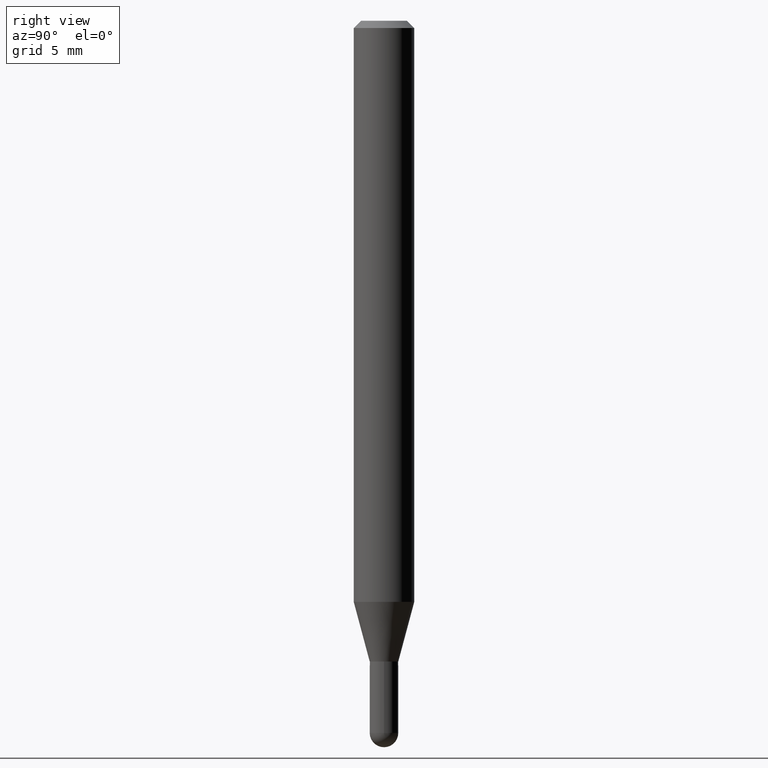
[diagram: clean part render]
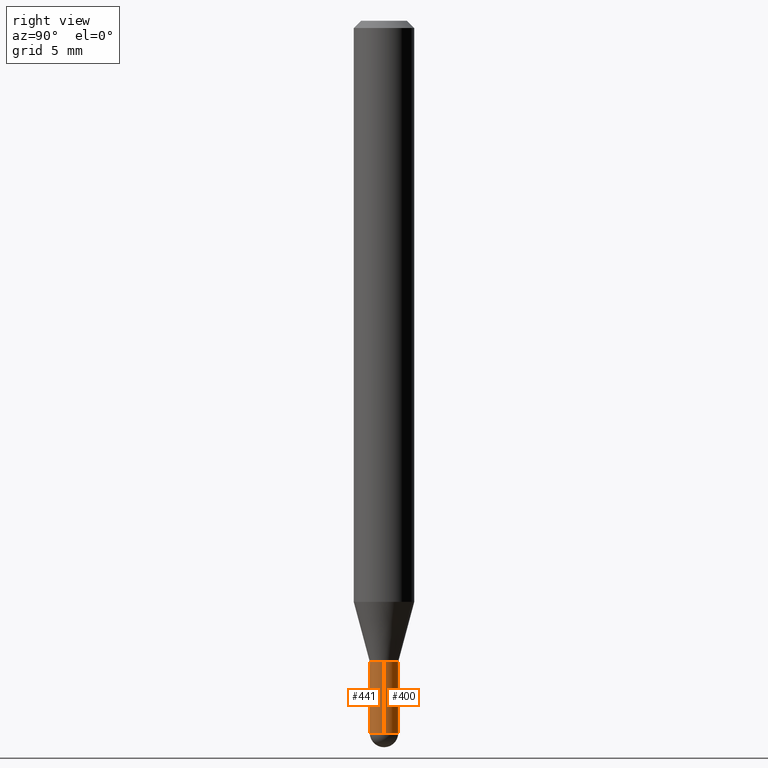
[diagram: same view with one multi-face feature highlighted, each face labeled with its STEP entity id]
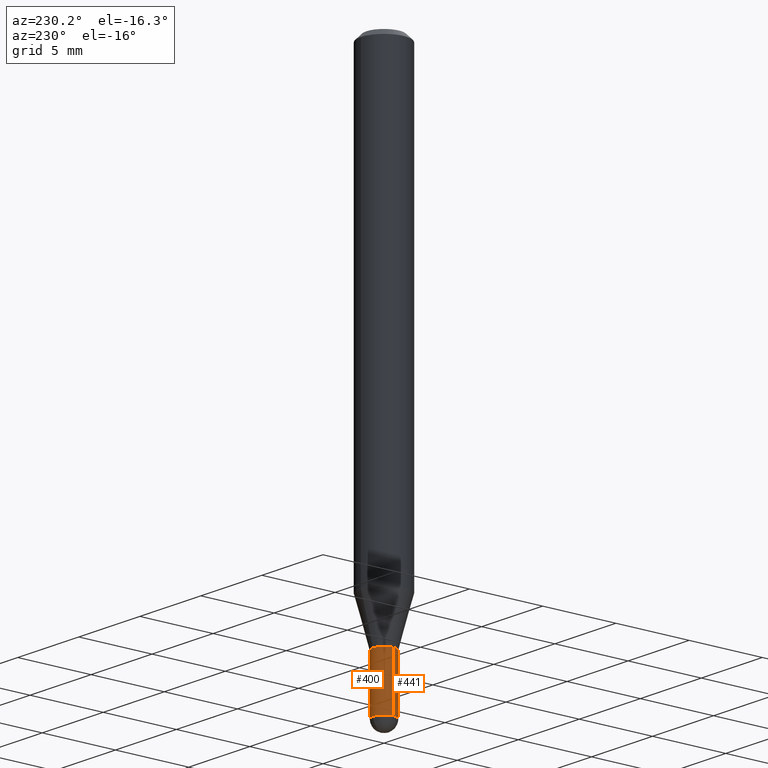
[diagram: same view with one multi-face feature highlighted, each face labeled with its STEP entity id]
A machine part, right view. The highlighted faces form ONE feature: a constant-radius fillet chain: 2 tangent blend faces with common blend radius 0.7493 mm. The faces share edges in the B-rep.
A second angle (auxiliary view) of the same feature is appended — it is thin or edge-on in the first view.
Their STEP definitions:
[1] entity #400 (Cylinder):
#1 = ORIENTED_EDGE ( 'NONE', *, *, #340, .F. ) ;
#4 = VERTEX_POINT ( 'NONE', #277 ) ;
#8 = EDGE_CURVE ( 'NONE', #418, #4, #76, .T. ) ;
#17 = CARTESIAN_POINT ( 'NONE',  ( 0.02950000000000000192, -5.082723959020908406E-15, -1.470500000000000140 ) ) ;
#24 = CYLINDRICAL_SURFACE ( 'NONE', #185, 0.02950000000000000192 ) ;
#50 = CARTESIAN_POINT ( 'NONE',  ( 3.235355230582935570E-29, -4.619229811289481459E-15, -1.323000000000000176 ) ) ;
#76 = CIRCLE ( 'NONE', #476, 0.02950000000000000192 ) ;
#92 = DIRECTION ( 'NONE',  ( 1.000000000000000000, -6.982962677686250933E-15, 0.000000000000000000 ) ) ;
#94 = DIRECTION ( 'NONE',  ( 1.000000000000000000, -6.982962677686265922E-15, 4.876176775795935793E-29 ) ) ;
#121 = EDGE_CURVE ( 'NONE', #4, #402, #397, .T. ) ;
#146 = DIRECTION ( 'NONE',  ( -2.445468806185136597E-29, 3.491481338843145583E-15, 1.000000000000000000 ) ) ;
#148 = DIRECTION ( 'NONE',  ( -2.445468806185136597E-29, 3.491481338843145583E-15, 1.000000000000000000 ) ) ;
#164 = AXIS2_PLACEMENT_3D ( 'NONE', #205, #316, #425 ) ;
#174 = ORIENTED_EDGE ( 'NONE', *, *, #190, .F. ) ;
#183 = DIRECTION ( 'NONE',  ( -2.445468806185136877E-29, 3.491481338843145188E-15, 1.000000000000000000 ) ) ;
#185 = AXIS2_PLACEMENT_3D ( 'NONE', #508, #146, #94 ) ;
#190 = EDGE_CURVE ( 'NONE', #395, #402, #451, .T. ) ;
#198 = CARTESIAN_POINT ( 'NONE',  ( -0.02950000000000000192, 2.096101070492295684E-16, -1.451085851625197342E-30 ) ) ;
#205 = CARTESIAN_POINT ( 'NONE',  ( 3.596061879495243621E-29, -5.134223308768845522E-15, -1.470500000000000140 ) ) ;
#219 = AXIS2_PLACEMENT_3D ( 'NONE', #50, #301, #92 ) ;
#272 = CARTESIAN_POINT ( 'NONE',  ( 0.02950000000000000192, -2.059973989917448660E-16, 1.438472148859801150E-30 ) ) ;
#277 = CARTESIAN_POINT ( 'NONE',  ( -0.02950000000000000192, -4.667116452979933749E-15, -1.470500000000000140 ) ) ;
#279 = ORIENTED_EDGE ( 'NONE', *, *, #121, .T. ) ;
#280 = EDGE_CURVE ( 'NONE', #512, #418, #499, .T. ) ;
#281 = DIRECTION ( 'NONE',  ( -2.445468806185136877E-29, 3.491481338843145188E-15, 1.000000000000000000 ) ) ;
#301 = DIRECTION ( 'NONE',  ( -2.445468806185136597E-29, 3.491481338843145583E-15, 1.000000000000000000 ) ) ;
#310 = CARTESIAN_POINT ( 'NONE',  ( -0.02949999999999999845, -4.667116452979933749E-15, -1.323000000000000176 ) ) ;
#316 = DIRECTION ( 'NONE',  ( -2.445468806185136597E-29, 3.491481338843145583E-15, 1.000000000000000000 ) ) ;
#330 = ORIENTED_EDGE ( 'NONE', *, *, #8, .T. ) ;
#332 = EDGE_LOOP ( 'NONE', ( #330, #279, #174, #1, #351 ) ) ;
#340 = EDGE_CURVE ( 'NONE', #512, #395, #470, .T. ) ;
#343 = CARTESIAN_POINT ( 'NONE',  ( 0.02949999999999999845, -4.825227210281225980E-15, -1.323000000000000176 ) ) ;
#351 = ORIENTED_EDGE ( 'NONE', *, *, #280, .T. ) ;
#377 = FACE_OUTER_BOUND ( 'NONE', #332, .T. ) ;
#394 = CARTESIAN_POINT ( 'NONE',  ( 3.596061879495243621E-29, -5.134223308768845522E-15, -1.470500000000000140 ) ) ;
#395 = VERTEX_POINT ( 'NONE', #343 ) ;
#397 = LINE ( 'NONE', #198, #481 ) ;
#400 = ADVANCED_FACE ( 'NONE', ( #377 ), #24, .T. ) ;
#402 = VERTEX_POINT ( 'NONE', #310 ) ;
#418 = VERTEX_POINT ( 'NONE', #498 ) ;
#425 = DIRECTION ( 'NONE',  ( 1.000000000000000000, -6.982962677686250144E-15, 0.000000000000000000 ) ) ;
#426 = DIRECTION ( 'NONE',  ( 1.000000000000000000, -6.982962677686250144E-15, 0.000000000000000000 ) ) ;
#438 = VECTOR ( 'NONE', #281, 39.37007874015748143 ) ;
#451 = CIRCLE ( 'NONE', #219, 0.02949999999999999845 ) ;
#470 = LINE ( 'NONE', #272, #438 ) ;
#476 = AXIS2_PLACEMENT_3D ( 'NONE', #394, #148, #426 ) ;
#481 = VECTOR ( 'NONE', #183, 39.37007874015748143 ) ;
#498 = CARTESIAN_POINT ( 'NONE',  ( 2.096101070492661026E-16, 0.02949999999999495040, -1.470500000000000140 ) ) ;
#499 = CIRCLE ( 'NONE', #164, 0.02950000000000000192 ) ;
#508 = CARTESIAN_POINT ( 'NONE',  ( 0.000000000000000000, 0.000000000000000000, 0.000000000000000000 ) ) ;
#512 = VERTEX_POINT ( 'NONE', #17 ) ;
[2] entity #441 (Cylinder):
#4 = VERTEX_POINT ( 'NONE', #277 ) ;
#17 = CARTESIAN_POINT ( 'NONE',  ( 0.02950000000000000192, -5.082723959020908406E-15, -1.470500000000000140 ) ) ;
#26 = DIRECTION ( 'NONE',  ( 1.000000000000000000, -6.982962677686250144E-15, 0.000000000000000000 ) ) ;
#29 = AXIS2_PLACEMENT_3D ( 'NONE', #504, #431, #68 ) ;
#34 = CIRCLE ( 'NONE', #232, 0.02950000000000000192 ) ;
#51 = ORIENTED_EDGE ( 'NONE', *, *, #340, .T. ) ;
#68 = DIRECTION ( 'NONE',  ( 1.000000000000000000, -6.982962677686265922E-15, 4.876176775795935793E-29 ) ) ;
#72 = CIRCLE ( 'NONE', #353, 0.02950000000000000192 ) ;
#77 = CIRCLE ( 'NONE', #459, 0.02949999999999999845 ) ;
#96 = VERTEX_POINT ( 'NONE', #125 ) ;
#106 = DIRECTION ( 'NONE',  ( -2.445468806185136597E-29, 3.491481338843145583E-15, 1.000000000000000000 ) ) ;
#118 = EDGE_LOOP ( 'NONE', ( #471, #282, #122, #51, #315 ) ) ;
#121 = EDGE_CURVE ( 'NONE', #4, #402, #397, .T. ) ;
#122 = ORIENTED_EDGE ( 'NONE', *, *, #149, .T. ) ;
#125 = CARTESIAN_POINT ( 'NONE',  ( -2.059973989917094905E-16, -0.02950000000000521996, -1.470500000000000140 ) ) ;
#134 = CARTESIAN_POINT ( 'NONE',  ( 3.596061879495243621E-29, -5.134223308768845522E-15, -1.470500000000000140 ) ) ;
#149 = EDGE_CURVE ( 'NONE', #96, #512, #34, .T. ) ;
#161 = EDGE_CURVE ( 'NONE', #4, #96, #72, .T. ) ;
#183 = DIRECTION ( 'NONE',  ( -2.445468806185136877E-29, 3.491481338843145188E-15, 1.000000000000000000 ) ) ;
#198 = CARTESIAN_POINT ( 'NONE',  ( -0.02950000000000000192, 2.096101070492295684E-16, -1.451085851625197342E-30 ) ) ;
#208 = DIRECTION ( 'NONE',  ( -2.445468806185136597E-29, 3.491481338843145583E-15, 1.000000000000000000 ) ) ;
#210 = DIRECTION ( 'NONE',  ( -2.445468806185136597E-29, 3.491481338843145583E-15, 1.000000000000000000 ) ) ;
#218 = CARTESIAN_POINT ( 'NONE',  ( 3.596061879495243621E-29, -5.134223308768845522E-15, -1.470500000000000140 ) ) ;
#224 = DIRECTION ( 'NONE',  ( 1.000000000000000000, -6.982962677686250933E-15, 0.000000000000000000 ) ) ;
#232 = AXIS2_PLACEMENT_3D ( 'NONE', #134, #208, #26 ) ;
#272 = CARTESIAN_POINT ( 'NONE',  ( 0.02950000000000000192, -2.059973989917448660E-16, 1.438472148859801150E-30 ) ) ;
#277 = CARTESIAN_POINT ( 'NONE',  ( -0.02950000000000000192, -4.667116452979933749E-15, -1.470500000000000140 ) ) ;
#281 = DIRECTION ( 'NONE',  ( -2.445468806185136877E-29, 3.491481338843145188E-15, 1.000000000000000000 ) ) ;
#282 = ORIENTED_EDGE ( 'NONE', *, *, #161, .T. ) ;
#288 = FACE_OUTER_BOUND ( 'NONE', #118, .T. ) ;
#310 = CARTESIAN_POINT ( 'NONE',  ( -0.02949999999999999845, -4.667116452979933749E-15, -1.323000000000000176 ) ) ;
#315 = ORIENTED_EDGE ( 'NONE', *, *, #429, .F. ) ;
#334 = DIRECTION ( 'NONE',  ( 1.000000000000000000, -6.982962677686250144E-15, 0.000000000000000000 ) ) ;
#340 = EDGE_CURVE ( 'NONE', #512, #395, #470, .T. ) ;
#343 = CARTESIAN_POINT ( 'NONE',  ( 0.02949999999999999845, -4.825227210281225980E-15, -1.323000000000000176 ) ) ;
#348 = CARTESIAN_POINT ( 'NONE',  ( 3.235355230582935570E-29, -4.619229811289481459E-15, -1.323000000000000176 ) ) ;
#353 = AXIS2_PLACEMENT_3D ( 'NONE', #218, #210, #334 ) ;
#395 = VERTEX_POINT ( 'NONE', #343 ) ;
#397 = LINE ( 'NONE', #198, #481 ) ;
#402 = VERTEX_POINT ( 'NONE', #310 ) ;
#429 = EDGE_CURVE ( 'NONE', #402, #395, #77, .T. ) ;
#431 = DIRECTION ( 'NONE',  ( -2.445468806185136597E-29, 3.491481338843145583E-15, 1.000000000000000000 ) ) ;
#438 = VECTOR ( 'NONE', #281, 39.37007874015748143 ) ;
#441 = ADVANCED_FACE ( 'NONE', ( #288 ), #446, .T. ) ;
#446 = CYLINDRICAL_SURFACE ( 'NONE', #29, 0.02950000000000000192 ) ;
#459 = AXIS2_PLACEMENT_3D ( 'NONE', #348, #106, #224 ) ;
#470 = LINE ( 'NONE', #272, #438 ) ;
#471 = ORIENTED_EDGE ( 'NONE', *, *, #121, .F. ) ;
#481 = VECTOR ( 'NONE', #183, 39.37007874015748143 ) ;
#504 = CARTESIAN_POINT ( 'NONE',  ( 0.000000000000000000, 0.000000000000000000, 0.000000000000000000 ) ) ;
#512 = VERTEX_POINT ( 'NONE', #17 ) ;